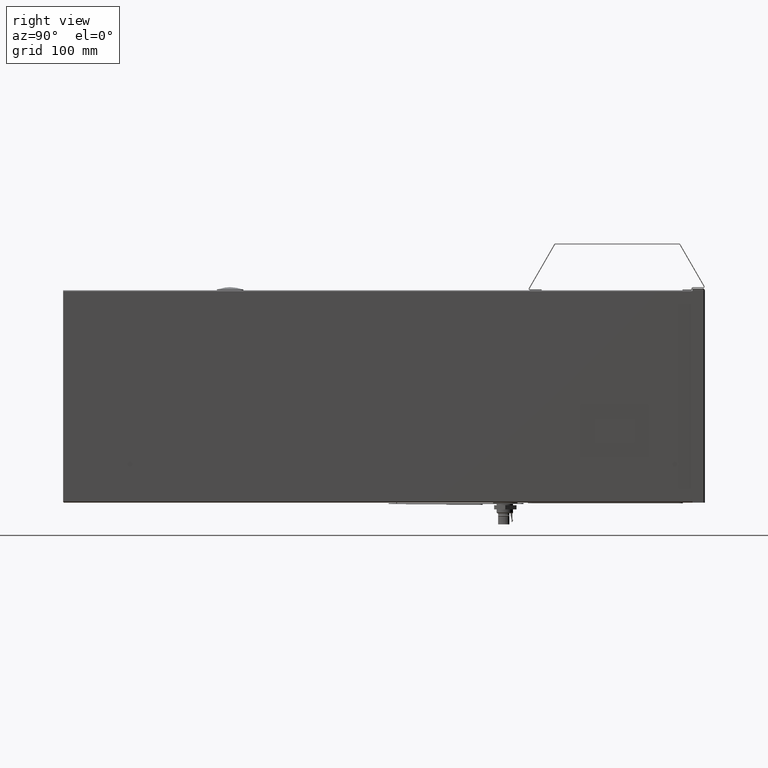
[diagram: clean part render]
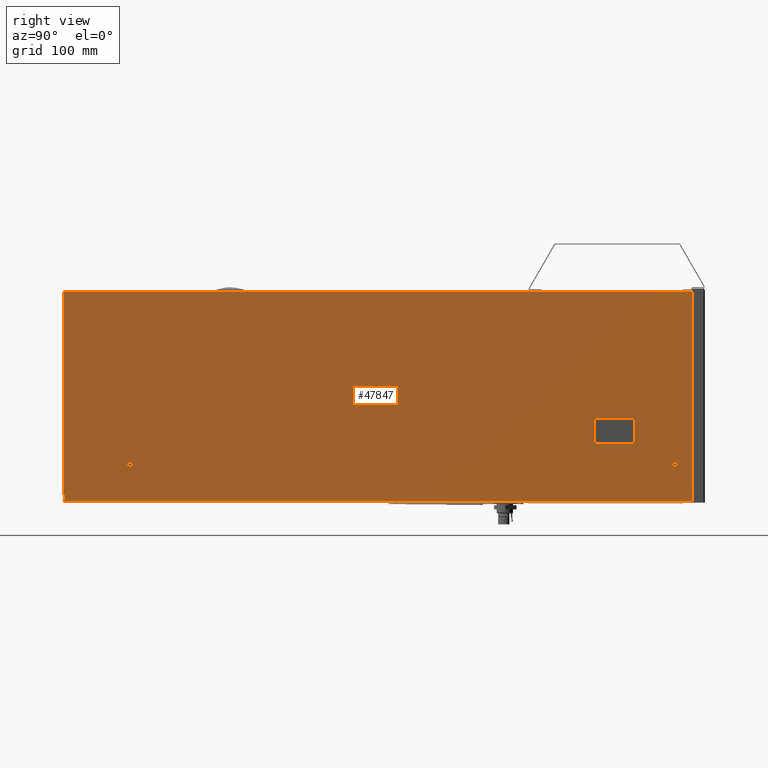
[diagram: same view with one face highlighted and labeled with its STEP entity id]
A machine part, right view. The second image highlights one B-rep face of the part: STEP entity #47847.
In plain terms, the highlighted planar face has unit normal (-1, -0, -0).
Its self-contained STEP definition (entity closure, byte-faithful):
#1206 = ORIENTED_EDGE ( 'NONE', *, *, #50598, .F. ) ;
#2541 = VERTEX_POINT ( 'NONE', #34759 ) ;
#3142 = EDGE_CURVE ( 'NONE', #61647, #29348, #54104, .T. ) ;
#3486 = DIRECTION ( 'NONE',  ( 3.275188007170191557E-20, -0.9999999999404064477, 1.091729334391110480E-05 ) ) ;
#3537 = CIRCLE ( 'NONE', #42223, 0.1377952755905488824 ) ;
#3600 = VECTOR ( 'NONE', #20866, 39.37007874015748143 ) ;
#3877 = DIRECTION ( 'NONE',  ( -1.000000000000000000, -3.275188005545924834E-20, 3.575618825162945520E-25 ) ) ;
#4781 = VERTEX_POINT ( 'NONE', #43411 ) ;
#5480 = CARTESIAN_POINT ( 'NONE',  ( 5.875984251968503713, 14.05332228490730451, -2.563222280444854562 ) ) ;
#5572 = EDGE_CURVE ( 'NONE', #29348, #61647, #3537, .T. ) ;
#6108 = ORIENTED_EDGE ( 'NONE', *, *, #7815, .F. ) ;
#6852 = CARTESIAN_POINT ( 'NONE',  ( 5.875984251968503713, 11.84859787558988309, -2.563198210821731937 ) ) ;
#7766 = EDGE_CURVE ( 'NONE', #21190, #2541, #13099, .T. ) ;
#7815 = EDGE_CURVE ( 'NONE', #59952, #19946, #16960, .T. ) ;
#7894 = VECTOR ( 'NONE', #28764, 39.37007874015748143 ) ;
#8300 = DIRECTION ( 'NONE',  ( -3.493377570334747231E-15, 1.091729334354220501E-05, 0.9999999999404064477 ) ) ;
#9063 = FACE_BOUND ( 'NONE', #51853, .T. ) ;
#9365 = FACE_OUTER_BOUND ( 'NONE', #27546, .T. ) ;
#9523 = ORIENTED_EDGE ( 'NONE', *, *, #7766, .F. ) ;
#9975 = AXIS2_PLACEMENT_3D ( 'NONE', #52361, #48212, #48520 ) ;
#10258 = DIRECTION ( 'NONE',  ( 0.000000000000000000, 0.000000000000000000, 1.000000000000000000 ) ) ;
#10298 = VECTOR ( 'NONE', #48675, 39.37007874015748143 ) ;
#10566 = VERTEX_POINT ( 'NONE', #17815 ) ;
#10719 = DIRECTION ( 'NONE',  ( -1.000000000000000000, -3.275188005545924834E-20, 3.575618825162945520E-25 ) ) ;
#13099 = LINE ( 'NONE', #56761, #40815 ) ;
#13768 = DIRECTION ( 'NONE',  ( 0.000000000000000000, 1.091729335505384863E-05, 0.9999999999404064477 ) ) ;
#14075 = CIRCLE ( 'NONE', #9975, 0.07874015748031502893 ) ;
#14932 = VECTOR ( 'NONE', #43654, 39.37007874015748143 ) ;
#15125 = CARTESIAN_POINT ( 'NONE',  ( 5.875984251968503713, 11.84861119984553213, -1.342725769949578707 ) ) ;
#15604 = CIRCLE ( 'NONE', #27849, 0.1377952755905494375 ) ;
#15713 = AXIS2_PLACEMENT_3D ( 'NONE', #23095, #48267, #18321 ) ;
#15815 = VECTOR ( 'NONE', #62243, 39.37007874015748143 ) ;
#16387 = VECTOR ( 'NONE', #36414, 39.37007874015748143 ) ;
#16400 = EDGE_LOOP ( 'NONE', ( #57673, #60858, #36119, #9523, #1206, #58584, #35398, #21188 ) ) ;
#16904 = EDGE_CURVE ( 'NONE', #32026, #23354, #25645, .T. ) ;
#16960 = LINE ( 'NONE', #17274, #16387 ) ;
#16999 = AXIS2_PLACEMENT_3D ( 'NONE', #21527, #26958, #51158 ) ;
#17219 = EDGE_CURVE ( 'NONE', #59952, #46609, #62567, .T. ) ;
#17274 = CARTESIAN_POINT ( 'NONE',  ( 5.875984251968503713, 17.92742265653417277, 5.909333808979271296 ) ) ;
#17815 = CARTESIAN_POINT ( 'NONE',  ( 5.875984251968503713, 11.92735221695055081, -1.263986472103358238 ) ) ;
#18278 = CARTESIAN_POINT ( 'NONE',  ( 5.875984251968503713, -18.09619905012704777, 5.940727089426752094 ) ) ;
#18321 = DIRECTION ( 'NONE',  ( -3.493377569769000250E-15, 0.000000000000000000, 1.000000000000000000 ) ) ;
#19718 = CARTESIAN_POINT ( 'NONE',  ( 5.875984251968503713, 11.92735135732116269, -1.342726629578980369 ) ) ;
#19946 = VERTEX_POINT ( 'NONE', #56404 ) ;
#20324 = ORIENTED_EDGE ( 'NONE', *, *, #17219, .T. ) ;
#20866 = DIRECTION ( 'NONE',  ( 3.493377570334747231E-15, -1.091729334354220501E-05, -0.9999999999404064477 ) ) ;
#21051 = CIRCLE ( 'NONE', #16999, 0.07874015748031502893 ) ;
#21188 = ORIENTED_EDGE ( 'NONE', *, *, #16904, .F. ) ;
#21190 = VERTEX_POINT ( 'NONE', #55879 ) ;
#21494 = CARTESIAN_POINT ( 'NONE',  ( 5.875984251968503713, 11.84861119984553213, -1.342725769949572712 ) ) ;
#21527 = CARTESIAN_POINT ( 'NONE',  ( 5.875984251968503713, 11.92733803306549412, -2.563199070451130268 ) ) ;
#21595 = EDGE_CURVE ( 'NONE', #46609, #41325, #40828, .T. ) ;
#21735 = EDGE_CURVE ( 'NONE', #31421, #10566, #27734, .T. ) ;
#23095 = CARTESIAN_POINT ( 'NONE',  ( 5.875984251968503713, 17.92742299497027503, 5.940333808977420915 ) ) ;
#23354 = VERTEX_POINT ( 'NONE', #6852 ) ;
#23381 = EDGE_CURVE ( 'NONE', #23354, #4781, #21051, .T. ) ;
#24440 = CARTESIAN_POINT ( 'NONE',  ( 5.875984251968503713, 14.05333646879236298, -1.264009682097080756 ) ) ;
#24510 = CARTESIAN_POINT ( 'NONE',  ( 5.875984251968503713, 17.37611167726921124, -5.987101117787973159 ) ) ;
#24758 = DIRECTION ( 'NONE',  ( 0.000000000000000000, 1.091729335505384863E-05, 0.9999999999404064477 ) ) ;
#24777 = CARTESIAN_POINT ( 'NONE',  ( 5.875984251968550787, -14.33247149233454643, -3.689510851258665625 ) ) ;
#25372 = ORIENTED_EDGE ( 'NONE', *, *, #21595, .T. ) ;
#25645 = LINE ( 'NONE', #21494, #3600 ) ;
#25674 = ORIENTED_EDGE ( 'NONE', *, *, #5572, .T. ) ;
#26951 = CIRCLE ( 'NONE', #47275, 0.1377952755905494375 ) ;
#26958 = DIRECTION ( 'NONE',  ( 1.000000000000000000, 7.089010776613390029E-20, 0.000000000000000000 ) ) ;
#27546 = EDGE_LOOP ( 'NONE', ( #55896, #6108, #20324, #25372 ) ) ;
#27734 = LINE ( 'NONE', #47173, #51044 ) ;
#27849 = AXIS2_PLACEMENT_3D ( 'NONE', #49300, #10719, #24758 ) ;
#27866 = VERTEX_POINT ( 'NONE', #45225 ) ;
#27890 = FACE_BOUND ( 'NONE', #16400, .T. ) ;
#28015 = ORIENTED_EDGE ( 'NONE', *, *, #48642, .T. ) ;
#28764 = DIRECTION ( 'NONE',  ( -3.275188007057966415E-20, 0.9999999999404064477, -1.091729334423234543E-05 ) ) ;
#28773 = CIRCLE ( 'NONE', #30841, 0.07874015748031502893 ) ;
#28834 = PLANE ( 'NONE',  #15713 ) ;
#29348 = VERTEX_POINT ( 'NONE', #24777 ) ;
#29842 = CARTESIAN_POINT ( 'NONE',  ( 5.875984251968503713, -18.09619938856315002, 5.909727089428622904 ) ) ;
#29867 = CARTESIAN_POINT ( 'NONE',  ( 5.875984251968503713, -18.09632834105326893, -5.902036689395039559 ) ) ;
#30841 = AXIS2_PLACEMENT_3D ( 'NONE', #19718, #34073, #57962 ) ;
#31020 = EDGE_CURVE ( 'NONE', #19946, #41325, #57981, .T. ) ;
#31421 = VERTEX_POINT ( 'NONE', #24440 ) ;
#31873 = VERTEX_POINT ( 'NONE', #53045 ) ;
#32026 = VERTEX_POINT ( 'NONE', #15125 ) ;
#32469 = VERTEX_POINT ( 'NONE', #49144 ) ;
#32588 = CARTESIAN_POINT ( 'NONE',  ( 5.875984251968550787, -14.33247450103744036, -3.965101402423345966 ) ) ;
#33871 = EDGE_LOOP ( 'NONE', ( #25674, #42652 ) ) ;
#34073 = DIRECTION ( 'NONE',  ( 1.000000000000000000, 7.089010776613390029E-20, 0.000000000000000000 ) ) ;
#34759 = CARTESIAN_POINT ( 'NONE',  ( 5.875984251968503713, 14.13207576663858234, -1.342750699202102327 ) ) ;
#35145 = DIRECTION ( 'NONE',  ( 1.000000000000000000, 7.089010776613390029E-20, 0.000000000000000000 ) ) ;
#35398 = ORIENTED_EDGE ( 'NONE', *, *, #23381, .F. ) ;
#36119 = ORIENTED_EDGE ( 'NONE', *, *, #41862, .F. ) ;
#36414 = DIRECTION ( 'NONE',  ( -3.275188005741776261E-20, 0.9999999999404064477, -1.091729334800000389E-05 ) ) ;
#36795 = DIRECTION ( 'NONE',  ( -1.000000000000000000, -3.275188005545924834E-20, 3.575618825162955162E-25 ) ) ;
#37683 = CARTESIAN_POINT ( 'NONE',  ( 5.875984251968550787, 16.37618841880679454, -3.827641382306020024 ) ) ;
#38229 = EDGE_CURVE ( 'NONE', #4781, #31873, #58069, .T. ) ;
#40815 = VECTOR ( 'NONE', #8300, 39.37007874015748143 ) ;
#40828 = LINE ( 'NONE', #29867, #10298 ) ;
#41325 = VERTEX_POINT ( 'NONE', #59495 ) ;
#41862 = EDGE_CURVE ( 'NONE', #2541, #31421, #14075, .T. ) ;
#41884 = DIRECTION ( 'NONE',  ( 0.000000000000000000, 1.091729335505389268E-05, 0.9999999999404064477 ) ) ;
#41931 = CARTESIAN_POINT ( 'NONE',  ( 5.875984251968550787, -14.33247299668600405, -3.827306126841004019 ) ) ;
#42223 = AXIS2_PLACEMENT_3D ( 'NONE', #41931, #61367, #47020 ) ;
#42652 = ORIENTED_EDGE ( 'NONE', *, *, #3142, .T. ) ;
#43411 = CARTESIAN_POINT ( 'NONE',  ( 5.875984251968503713, 11.92733717343610245, -2.641939227926751954 ) ) ;
#43654 = DIRECTION ( 'NONE',  ( 9.541485006438173917E-19, -1.091729334800000389E-05, -0.9999999999404064477 ) ) ;
#45225 = CARTESIAN_POINT ( 'NONE',  ( 5.875984251968550787, 16.37618691445533514, -3.965436657888362415 ) ) ;
#46360 = CARTESIAN_POINT ( 'NONE',  ( 5.875984251968550787, -14.33247299668600405, -3.827306126841004019 ) ) ;
#46609 = VERTEX_POINT ( 'NONE', #55355 ) ;
#47020 = DIRECTION ( 'NONE',  ( 0.000000000000000000, 1.091729335505389268E-05, 0.9999999999404064477 ) ) ;
#47173 = CARTESIAN_POINT ( 'NONE',  ( 5.875984251968503713, 14.05333646879236298, -1.264009682097080756 ) ) ;
#47275 = AXIS2_PLACEMENT_3D ( 'NONE', #37683, #3877, #13768 ) ;
#47847 = ADVANCED_FACE ( 'NONE', ( #9365, #9063, #56884, #27890 ), #28834, .F. ) ;
#48212 = DIRECTION ( 'NONE',  ( 1.000000000000000000, 7.089010776613390029E-20, 0.000000000000000000 ) ) ;
#48267 = DIRECTION ( 'NONE',  ( -1.000000000000000000, -7.089010776613390029E-20, -3.493377569769000250E-15 ) ) ;
#48270 = EDGE_CURVE ( 'NONE', #27866, #32469, #26951, .T. ) ;
#48520 = DIRECTION ( 'NONE',  ( 0.000000000000000000, 0.000000000000000000, 1.000000000000000000 ) ) ;
#48642 = EDGE_CURVE ( 'NONE', #32469, #27866, #15604, .T. ) ;
#48675 = DIRECTION ( 'NONE',  ( -3.275188005741776261E-20, 0.9999999999404064477, -1.091729334800000389E-05 ) ) ;
#49144 = CARTESIAN_POINT ( 'NONE',  ( 5.875984251968550787, 16.37618992315822908, -3.689846106723681185 ) ) ;
#49300 = CARTESIAN_POINT ( 'NONE',  ( 5.875984251968550787, 16.37618841880679454, -3.827641382306020024 ) ) ;
#50598 = EDGE_CURVE ( 'NONE', #31873, #21190, #53722, .T. ) ;
#51044 = VECTOR ( 'NONE', #3486, 39.37007874015748143 ) ;
#51158 = DIRECTION ( 'NONE',  ( 0.000000000000000000, 0.000000000000000000, 1.000000000000000000 ) ) ;
#51853 = EDGE_LOOP ( 'NONE', ( #28015, #60828 ) ) ;
#52361 = CARTESIAN_POINT ( 'NONE',  ( 5.875984251968503713, 14.05333560916295355, -1.342749839572704662 ) ) ;
#53045 = CARTESIAN_POINT ( 'NONE',  ( 5.875984251968503713, 14.05332142527791461, -2.641962437920476248 ) ) ;
#53722 = CIRCLE ( 'NONE', #60877, 0.07874015748031502893 ) ;
#54104 = CIRCLE ( 'NONE', #62256, 0.1377952755905488824 ) ;
#55355 = CARTESIAN_POINT ( 'NONE',  ( 5.875984251968503713, -18.09632834105326893, -5.902036689395039559 ) ) ;
#55879 = CARTESIAN_POINT ( 'NONE',  ( 5.875984251968503713, 14.13206244238293507, -2.563223140074248452 ) ) ;
#55896 = ORIENTED_EDGE ( 'NONE', *, *, #31020, .F. ) ;
#56404 = CARTESIAN_POINT ( 'NONE',  ( 5.875984251968503713, 17.37624155420480321, 5.909339826385060057 ) ) ;
#56761 = CARTESIAN_POINT ( 'NONE',  ( 5.875984251968503713, 14.13206244238293507, -2.563223140074240014 ) ) ;
#56884 = FACE_BOUND ( 'NONE', #33871, .T. ) ;
#57673 = ORIENTED_EDGE ( 'NONE', *, *, #59300, .F. ) ;
#57962 = DIRECTION ( 'NONE',  ( 0.000000000000000000, 0.000000000000000000, 1.000000000000000000 ) ) ;
#57981 = LINE ( 'NONE', #24510, #14932 ) ;
#58069 = LINE ( 'NONE', #62227, #7894 ) ;
#58584 = ORIENTED_EDGE ( 'NONE', *, *, #38229, .F. ) ;
#59300 = EDGE_CURVE ( 'NONE', #10566, #32026, #28773, .T. ) ;
#59495 = CARTESIAN_POINT ( 'NONE',  ( 5.875984251968503713, 17.37611260171466654, -5.902423952438605959 ) ) ;
#59952 = VERTEX_POINT ( 'NONE', #29842 ) ;
#60828 = ORIENTED_EDGE ( 'NONE', *, *, #48270, .T. ) ;
#60858 = ORIENTED_EDGE ( 'NONE', *, *, #21735, .F. ) ;
#60877 = AXIS2_PLACEMENT_3D ( 'NONE', #5480, #35145, #10258 ) ;
#61367 = DIRECTION ( 'NONE',  ( -1.000000000000000000, -3.275188005545924834E-20, 3.575618825162955162E-25 ) ) ;
#61647 = VERTEX_POINT ( 'NONE', #32588 ) ;
#62227 = CARTESIAN_POINT ( 'NONE',  ( 5.875984251968503713, 11.92733717343610245, -2.641939227926751954 ) ) ;
#62243 = DIRECTION ( 'NONE',  ( 3.493377570334747231E-15, -1.091729334726434391E-05, -0.9999999999404064477 ) ) ;
#62256 = AXIS2_PLACEMENT_3D ( 'NONE', #46360, #36795, #41884 ) ;
#62567 = LINE ( 'NONE', #18278, #15815 ) ;